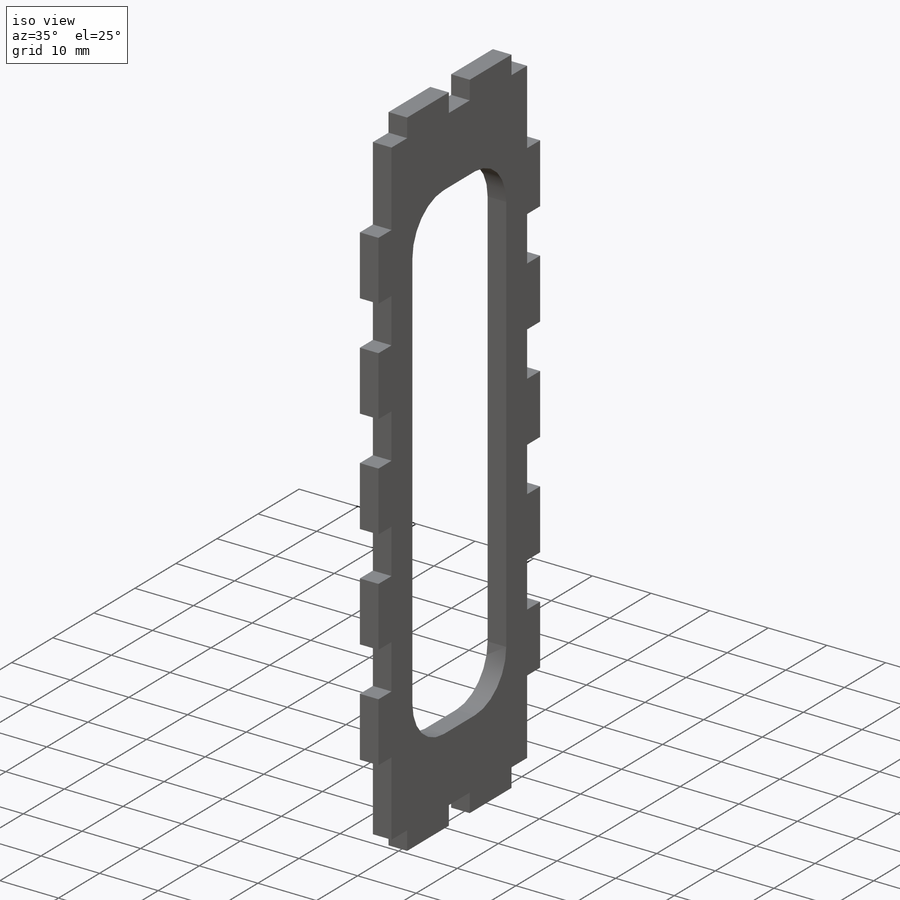
[diagram: iso view]
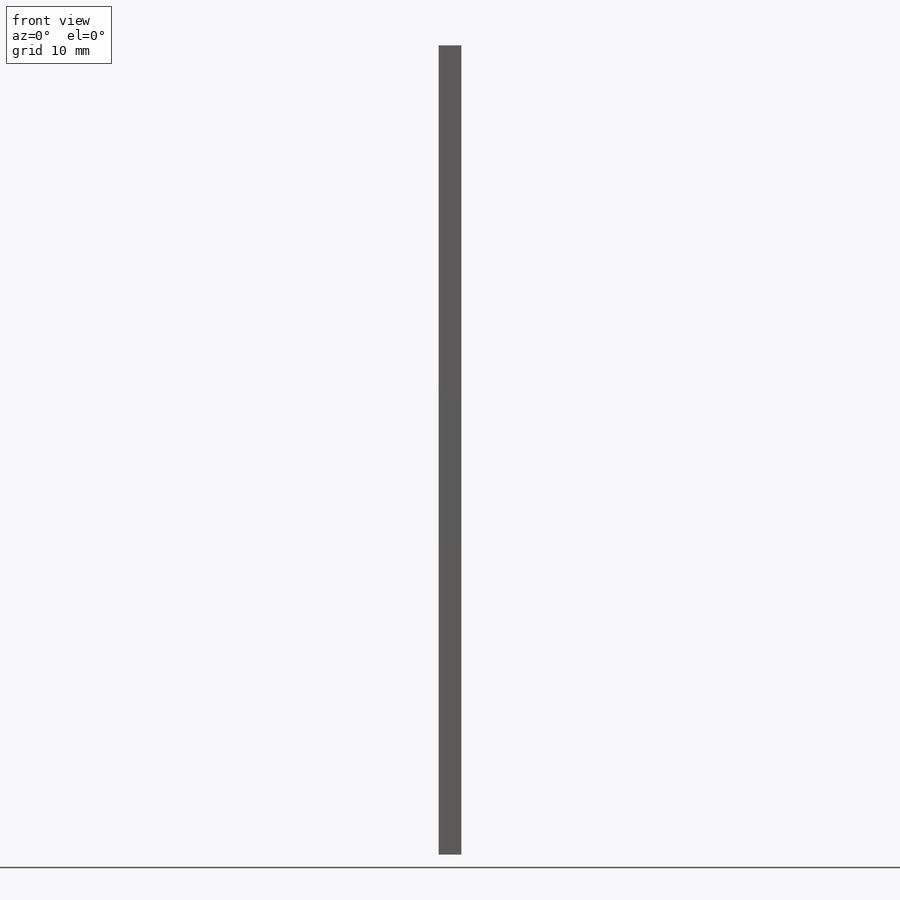
[diagram: front view]
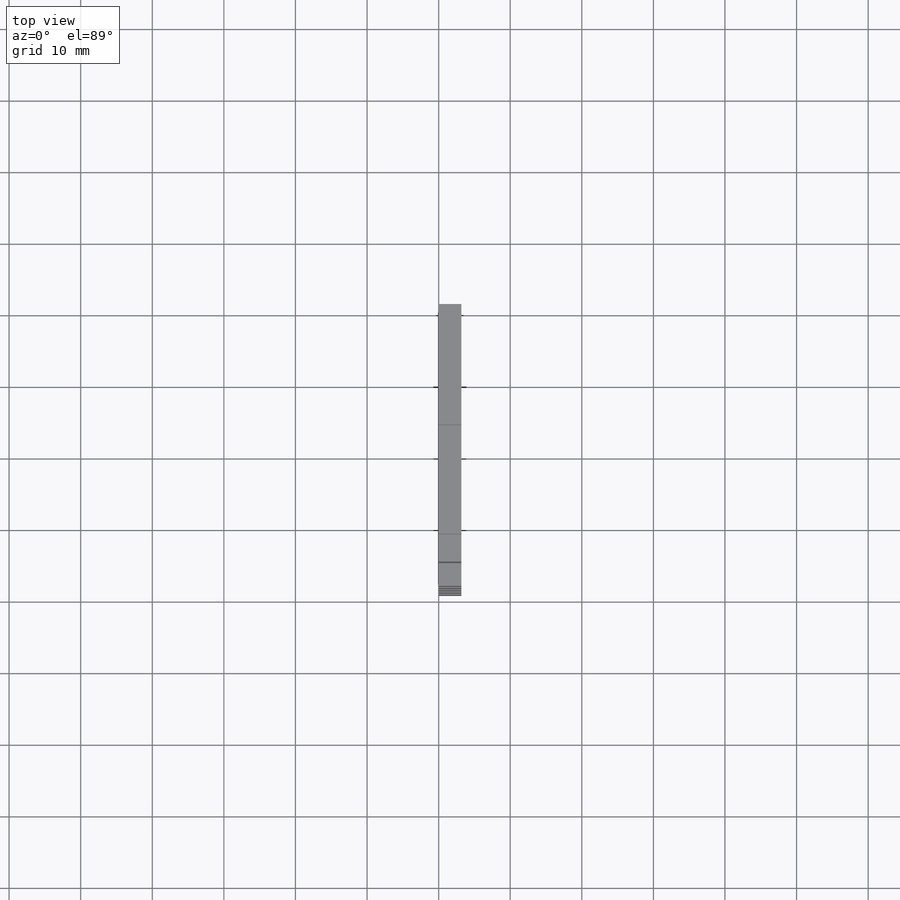
[diagram: top view]
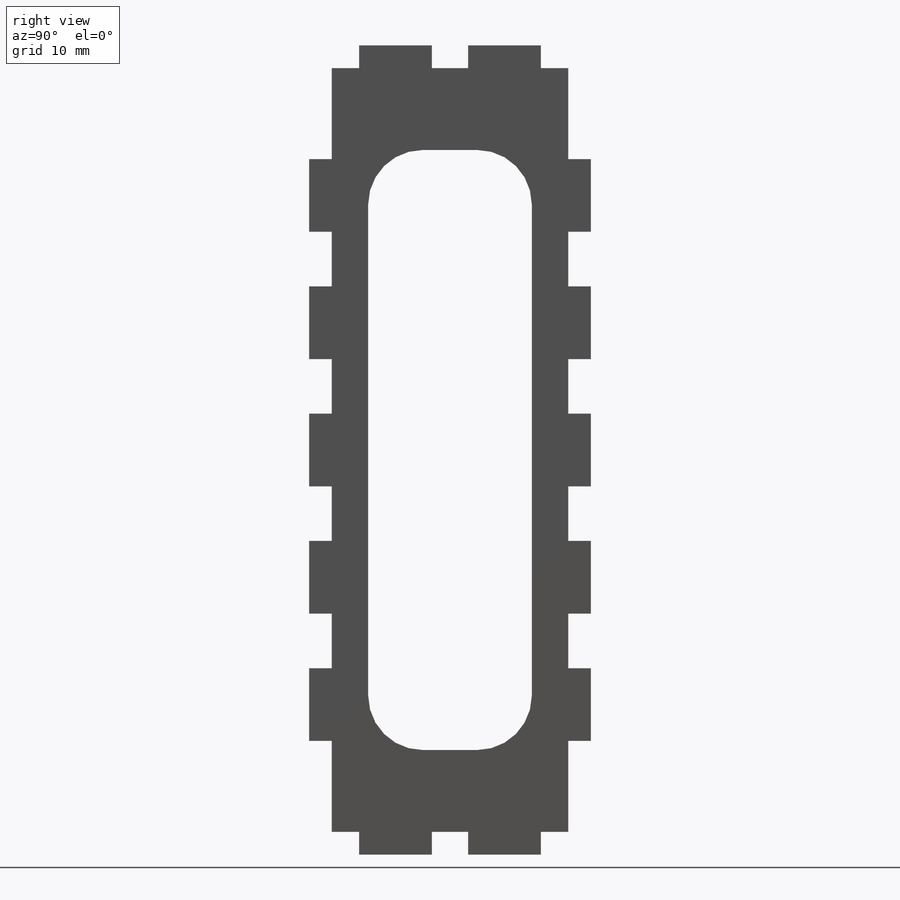
[diagram: right view]
SOLIDWORKS PART (.sldprt)
format: sldprt  version: not decoded by parser v0  size: 259,584 bytes
history: native  units: mm
features: sketch x4, extrude x3, mirror x3, plane x2, material x1, pattern_linear x1 (+13 scaffold rows collapsed)
feature tree (27):
  scaffold x13  (default folders/planes/origin — collapsed)
  material  "Material <not specified>"
  sketch  "Sketch1"  dims[D1=106.68mm D2=33.02mm]
  extrude  "Boss-Extrude1"  Depth=3.175mm
  sketch  "Sketch2"  dims[D1=12.7mm D2=96.52mm]
  sketch  "Sketch3"  dims[D1=10.16mm]
  extrude  "Boss-Extrude2"  Depth=3.175mm
  pattern_linear  "LPattern1"  Count1=5 Count2=1 Spacing1=17.78mm Spacing2=17.78mm
  plane  "Plane1"
  mirror  "Mirror1"
  plane  "Plane3"
  sketch  "Sketch4"  dims[D1=3.81mm D2=3.81mm D3=10.16mm]
  extrude  "Boss-Extrude3"  Depth=3.175mm
  mirror  "Mirror2"
  mirror  "Mirror3"
decode coverage: 8 of 11 modeling features carry decoded parameters
note: suppression state not decoded; provenance and decode notes live in map.json
